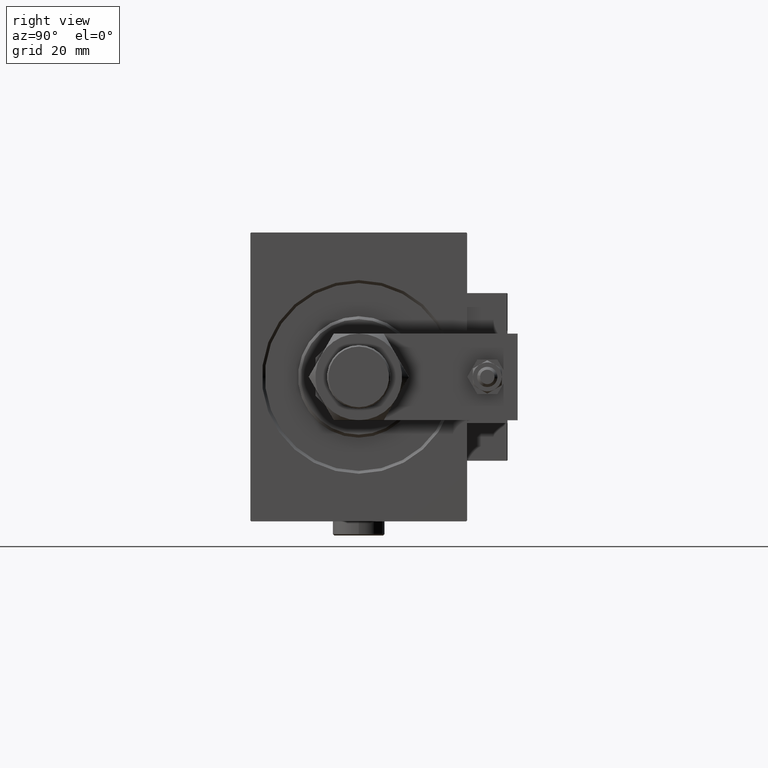
[diagram: clean part render]
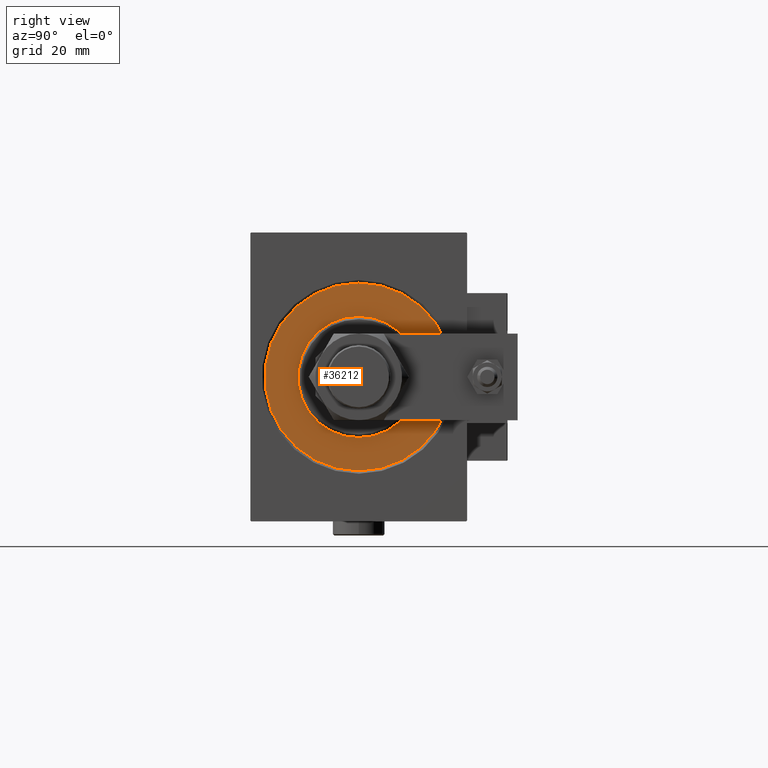
[diagram: same view with one face highlighted and labeled with its STEP entity id]
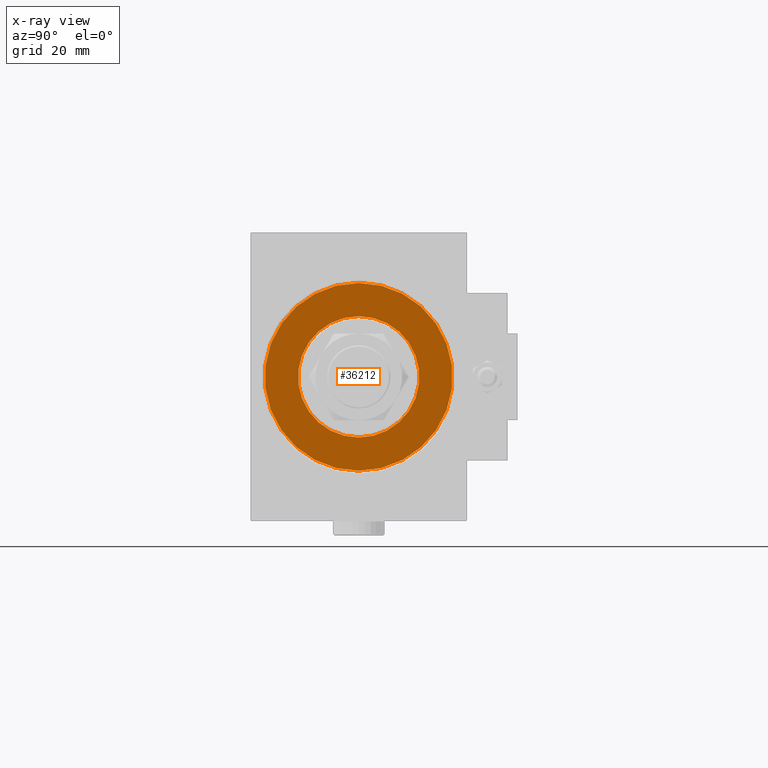
[diagram: x-ray of the same camera — body ghosted, the highlighted face saturated]
A machine part, right view. The second image highlights one B-rep face of the part: STEP entity #36212.
The next image is the same camera in x-ray: the body ghosted, the highlighted face saturated — about 0% of this face is hidden behind the body in this view.
In plain terms, the highlighted planar face has unit normal (1, 0, 0).
Its self-contained STEP definition (entity closure, byte-faithful):
#855 = AXIS2_PLACEMENT_3D ( 'NONE', #50331, #14342, #46326 ) ;
#1014 = FACE_OUTER_BOUND ( 'NONE', #48947, .T. ) ;
#1973 = VERTEX_POINT ( 'NONE', #42139 ) ;
#4742 = CARTESIAN_POINT ( 'NONE',  ( 0.000000000000000000, 0.000000000000000000, 21.00000000000000000 ) ) ;
#5276 = CARTESIAN_POINT ( 'NONE',  ( 0.000000000000000000, 0.000000000000000000, 0.000000000000000000 ) ) ;
#5879 = EDGE_LOOP ( 'NONE', ( #44946, #37400 ) ) ;
#6818 = EDGE_CURVE ( 'NONE', #17993, #29212, #24934, .T. ) ;
#13465 = ORIENTED_EDGE ( 'NONE', *, *, #34742, .T. ) ;
#14342 = DIRECTION ( 'NONE',  ( 1.000000000000000000, 0.000000000000000000, 0.000000000000000000 ) ) ;
#15172 = DIRECTION ( 'NONE',  ( 1.000000000000000000, -0.000000000000000000, 0.000000000000000000 ) ) ;
#15948 = CARTESIAN_POINT ( 'NONE',  ( 0.000000000000000000, 0.000000000000000000, 0.000000000000000000 ) ) ;
#17993 = VERTEX_POINT ( 'NONE', #4742 ) ;
#18591 = DIRECTION ( 'NONE',  ( 1.000000000000000000, 0.000000000000000000, 0.000000000000000000 ) ) ;
#19627 = CIRCLE ( 'NONE', #26452, 32.50000000000000000 ) ;
#20344 = VERTEX_POINT ( 'NONE', #47957 ) ;
#21184 = ORIENTED_EDGE ( 'NONE', *, *, #37186, .T. ) ;
#21528 = DIRECTION ( 'NONE',  ( 0.000000000000000000, 0.000000000000000000, -1.000000000000000000 ) ) ;
#21786 = CARTESIAN_POINT ( 'NONE',  ( 0.000000000000000000, 2.571758278209441661E-15, -21.00000000000000000 ) ) ;
#23209 = AXIS2_PLACEMENT_3D ( 'NONE', #15948, #32209, #48457 ) ;
#23527 = DIRECTION ( 'NONE',  ( 0.000000000000000000, 0.000000000000000000, -1.000000000000000000 ) ) ;
#24049 = CARTESIAN_POINT ( 'NONE',  ( 0.000000000000000000, 0.000000000000000000, 0.000000000000000000 ) ) ;
#24934 = CIRCLE ( 'NONE', #23209, 21.00000000000000000 ) ;
#26452 = AXIS2_PLACEMENT_3D ( 'NONE', #5276, #18591, #21528 ) ;
#27149 = AXIS2_PLACEMENT_3D ( 'NONE', #27962, #15172, #36469 ) ;
#27962 = CARTESIAN_POINT ( 'NONE',  ( 0.000000000000000000, 0.000000000000000000, 0.000000000000000000 ) ) ;
#29212 = VERTEX_POINT ( 'NONE', #21786 ) ;
#32209 = DIRECTION ( 'NONE',  ( 1.000000000000000000, -0.000000000000000000, 0.000000000000000000 ) ) ;
#33179 = EDGE_CURVE ( 'NONE', #29212, #17993, #50109, .T. ) ;
#34063 = PLANE ( 'NONE',  #855 ) ;
#34742 = EDGE_CURVE ( 'NONE', #1973, #20344, #44273, .T. ) ;
#36212 = ADVANCED_FACE ( 'NONE', ( #1014, #41807 ), #34063, .T. ) ;
#36469 = DIRECTION ( 'NONE',  ( 0.000000000000000000, 0.000000000000000000, -1.000000000000000000 ) ) ;
#37186 = EDGE_CURVE ( 'NONE', #20344, #1973, #19627, .T. ) ;
#37400 = ORIENTED_EDGE ( 'NONE', *, *, #33179, .F. ) ;
#41807 = FACE_BOUND ( 'NONE', #5879, .T. ) ;
#42139 = CARTESIAN_POINT ( 'NONE',  ( 0.000000000000000000, 0.000000000000000000, -32.50000000000000000 ) ) ;
#44273 = CIRCLE ( 'NONE', #45101, 32.50000000000000000 ) ;
#44946 = ORIENTED_EDGE ( 'NONE', *, *, #6818, .F. ) ;
#45101 = AXIS2_PLACEMENT_3D ( 'NONE', #24049, #52308, #23527 ) ;
#46326 = DIRECTION ( 'NONE',  ( 0.000000000000000000, 0.000000000000000000, -1.000000000000000000 ) ) ;
#47957 = CARTESIAN_POINT ( 'NONE',  ( 0.000000000000000000, 3.980102097228898626E-15, 32.50000000000000000 ) ) ;
#48457 = DIRECTION ( 'NONE',  ( 0.000000000000000000, 0.000000000000000000, -1.000000000000000000 ) ) ;
#48947 = EDGE_LOOP ( 'NONE', ( #13465, #21184 ) ) ;
#50109 = CIRCLE ( 'NONE', #27149, 21.00000000000000000 ) ;
#50331 = CARTESIAN_POINT ( 'NONE',  ( 0.000000000000000000, 0.000000000000000000, 0.000000000000000000 ) ) ;
#52308 = DIRECTION ( 'NONE',  ( 1.000000000000000000, 0.000000000000000000, 0.000000000000000000 ) ) ;